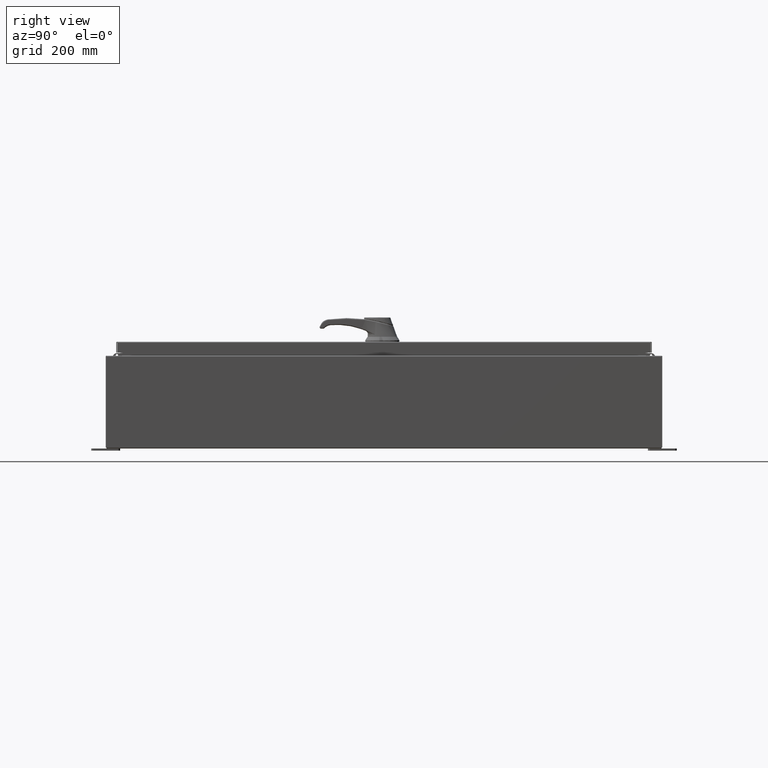
[diagram: clean part render]
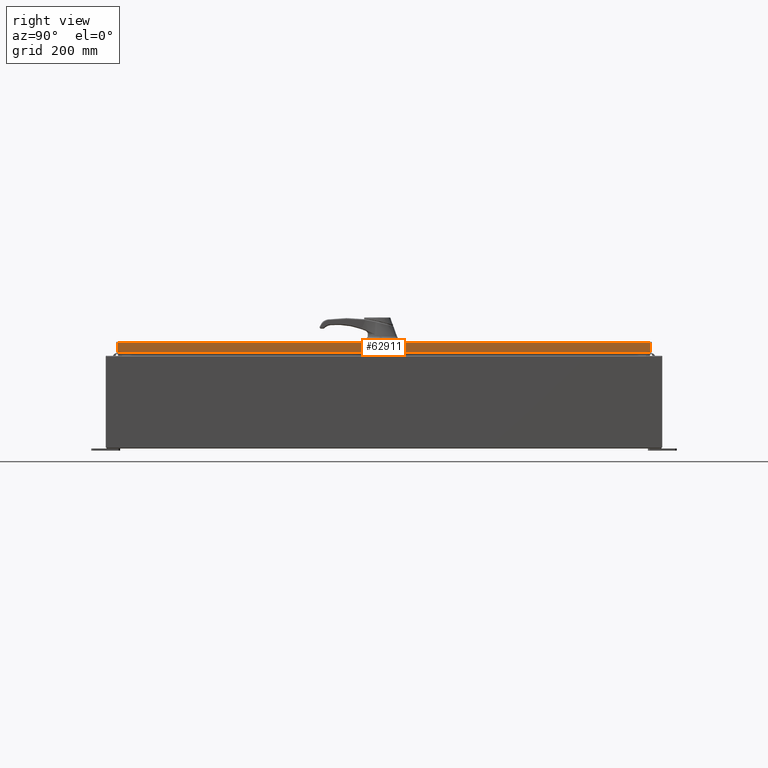
[diagram: same view with one face highlighted and labeled with its STEP entity id]
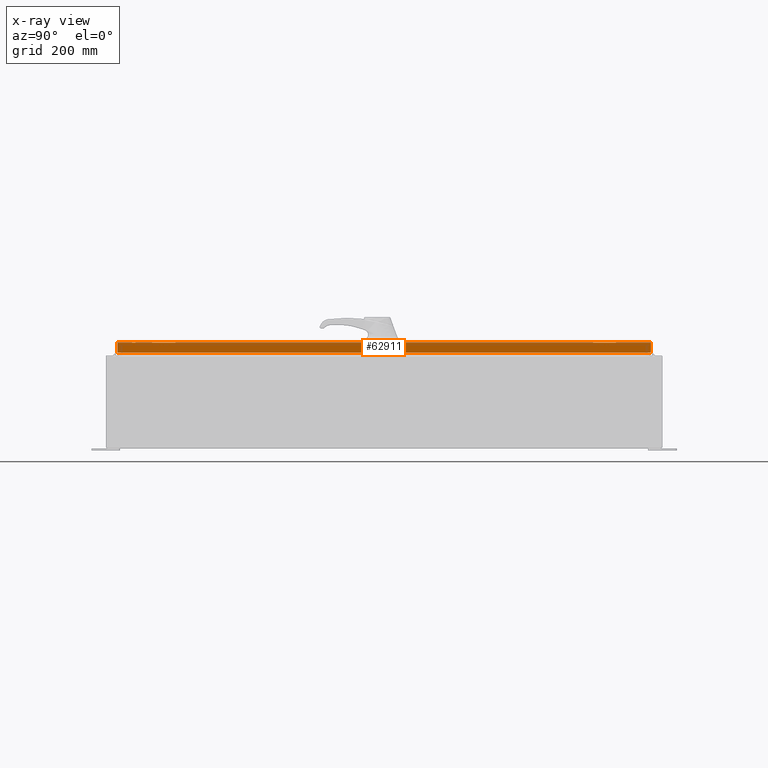
[diagram: x-ray of the same camera — body ghosted, the highlighted face saturated]
A machine part, right view. The second image highlights one B-rep face of the part: STEP entity #62911.
The next image is the same camera in x-ray: the body ghosted, the highlighted face saturated — about 0% of this face is hidden behind the body in this view.
In plain terms, the highlighted planar face has unit normal (1, 0, 0).
Its self-contained STEP definition (entity closure, byte-faithful):
#13136 = EDGE_LOOP ( 'NONE', ( #32942, #99519, #69482, #129364 ) ) ;
#15464 = VECTOR ( 'NONE', #30630, 39.37007874015748100 ) ;
#21900 = PLANE ( 'NONE',  #43504 ) ;
#29944 = LINE ( 'NONE', #65062, #81875 ) ;
#30630 = DIRECTION ( 'NONE',  ( -2.532419924601866100E-015, -6.982962677686265900E-015, 1.000000000000000000 ) ) ;
#32326 = CARTESIAN_POINT ( 'NONE',  ( 17.07799999999999900, 0.0000000000000000000, 4.350948112836224800E-014 ) ) ;
#32942 = ORIENTED_EDGE ( 'NONE', *, *, #37044, .F. ) ;
#36309 = VERTEX_POINT ( 'NONE', #70305 ) ;
#37044 = EDGE_CURVE ( 'NONE', #37711, #75100, #126431, .T. ) ;
#37711 = VERTEX_POINT ( 'NONE', #119018 ) ;
#42701 = DIRECTION ( 'NONE',  ( 2.532419924601866100E-015, 0.0000000000000000000, -1.000000000000000000 ) ) ;
#43013 = LINE ( 'NONE', #123586, #15464 ) ;
#43504 = AXIS2_PLACEMENT_3D ( 'NONE', #32326, #104900, #42701 ) ;
#43611 = VECTOR ( 'NONE', #46976, 39.37007874015748100 ) ;
#46976 = DIRECTION ( 'NONE',  ( -2.532419924601866100E-015, -6.982962677686265900E-015, 1.000000000000000000 ) ) ;
#57076 = DIRECTION ( 'NONE',  ( 0.0000000000000000000, -1.000000000000000000, 0.0000000000000000000 ) ) ;
#62911 = ADVANCED_FACE ( 'NONE', ( #79482 ), #21900, .T. ) ;
#65062 = CARTESIAN_POINT ( 'NONE',  ( 17.07799999999999900, 0.0000000000000000000, -0.08770000000000008300 ) ) ;
#69482 = ORIENTED_EDGE ( 'NONE', *, *, #71059, .T. ) ;
#69805 = VERTEX_POINT ( 'NONE', #92820 ) ;
#70305 = CARTESIAN_POINT ( 'NONE',  ( 17.07799999999999900, 23.00515786437627200, -0.08770000000000008300 ) ) ;
#71059 = EDGE_CURVE ( 'NONE', #69805, #36309, #43013, .T. ) ;
#72533 = VECTOR ( 'NONE', #57076, 39.37007874015748100 ) ;
#75100 = VERTEX_POINT ( 'NONE', #121938 ) ;
#75524 = DIRECTION ( 'NONE',  ( 0.0000000000000000000, -1.000000000000000000, 0.0000000000000000000 ) ) ;
#79482 = FACE_OUTER_BOUND ( 'NONE', #13136, .T. ) ;
#80525 = EDGE_CURVE ( 'NONE', #36309, #75100, #29944, .T. ) ;
#81875 = VECTOR ( 'NONE', #75524, 39.37007874015748100 ) ;
#92820 = CARTESIAN_POINT ( 'NONE',  ( 17.07800000000000300, 23.00515786437628000, -0.9376999999999997600 ) ) ;
#98435 = CARTESIAN_POINT ( 'NONE',  ( 17.07800000000000300, -23.09400000000000100, -0.9376999999999997600 ) ) ;
#99519 = ORIENTED_EDGE ( 'NONE', *, *, #132904, .F. ) ;
#100204 = LINE ( 'NONE', #98435, #72533 ) ;
#104900 = DIRECTION ( 'NONE',  ( 1.000000000000000000, 0.0000000000000000000, 2.532419924601866100E-015 ) ) ;
#109131 = CARTESIAN_POINT ( 'NONE',  ( 17.07799999999999900, -23.00515786437626900, -0.07469999999999980800 ) ) ;
#119018 = CARTESIAN_POINT ( 'NONE',  ( 17.07800000000000300, -23.00515786437626200, -0.9376999999999997600 ) ) ;
#121938 = CARTESIAN_POINT ( 'NONE',  ( 17.07799999999999900, -23.00515786437626900, -0.08770000000000008300 ) ) ;
#123586 = CARTESIAN_POINT ( 'NONE',  ( 17.07799999999999900, 23.00515786437627600, 2.041536398895824600E-013 ) ) ;
#126431 = LINE ( 'NONE', #109131, #43611 ) ;
#129364 = ORIENTED_EDGE ( 'NONE', *, *, #80525, .T. ) ;
#132904 = EDGE_CURVE ( 'NONE', #69805, #37711, #100204, .T. ) ;